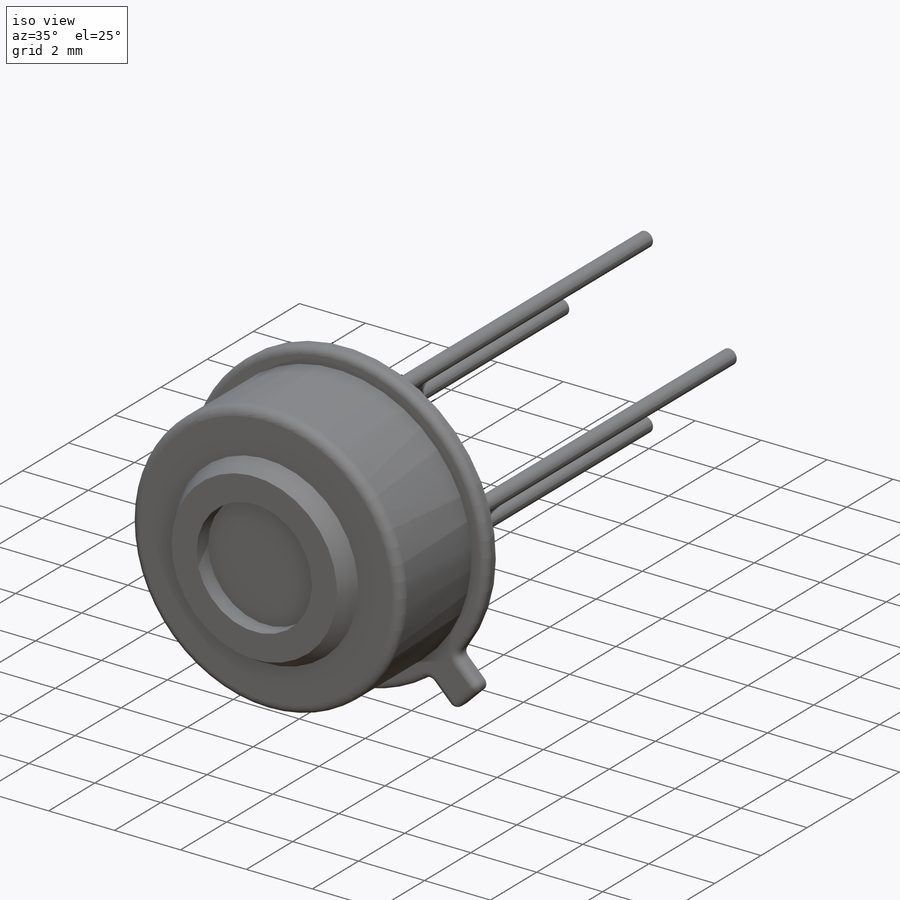
[diagram: iso view]
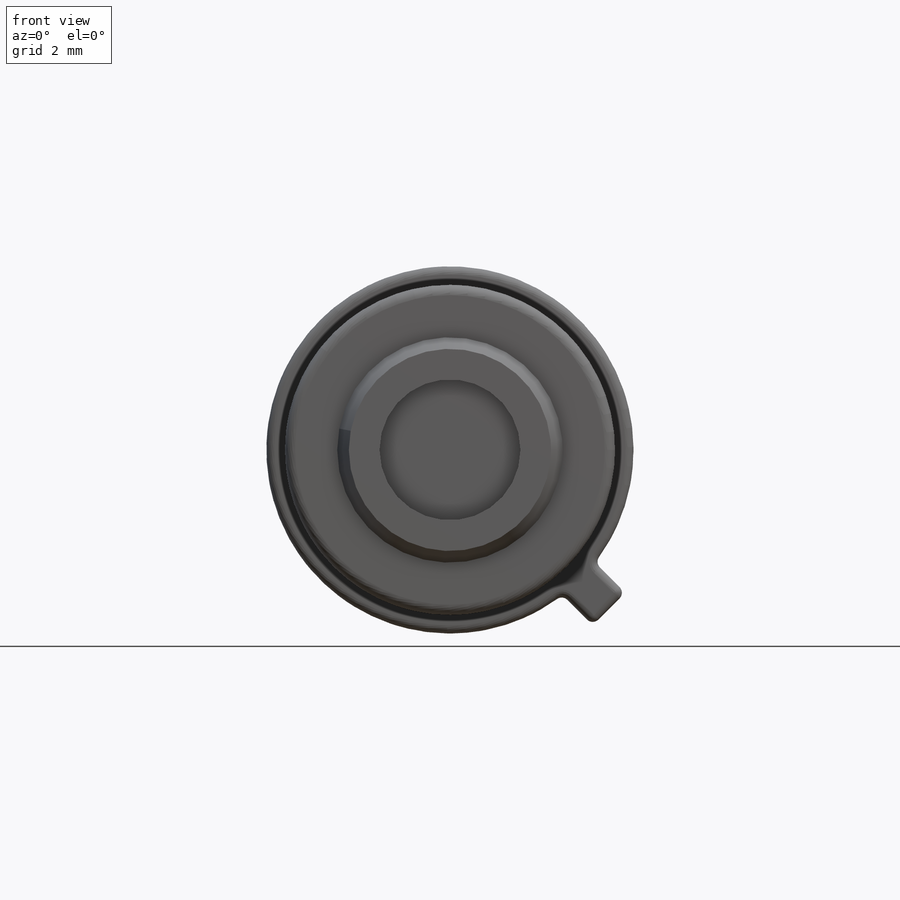
[diagram: front view]
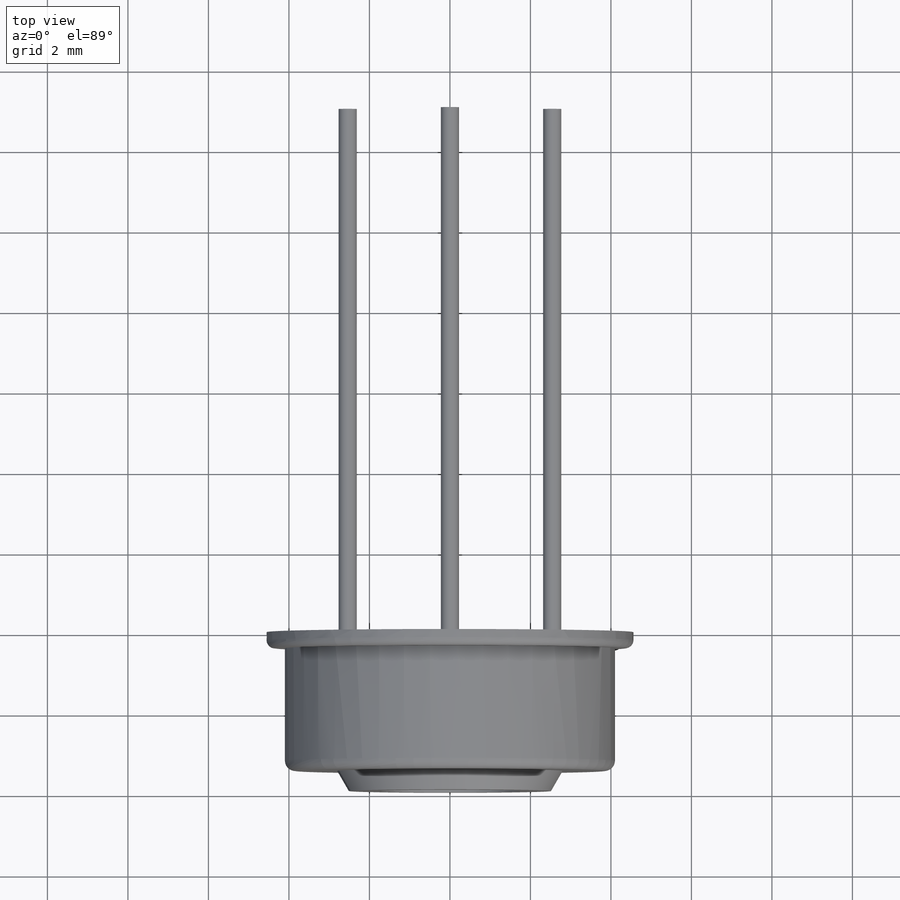
[diagram: top view]
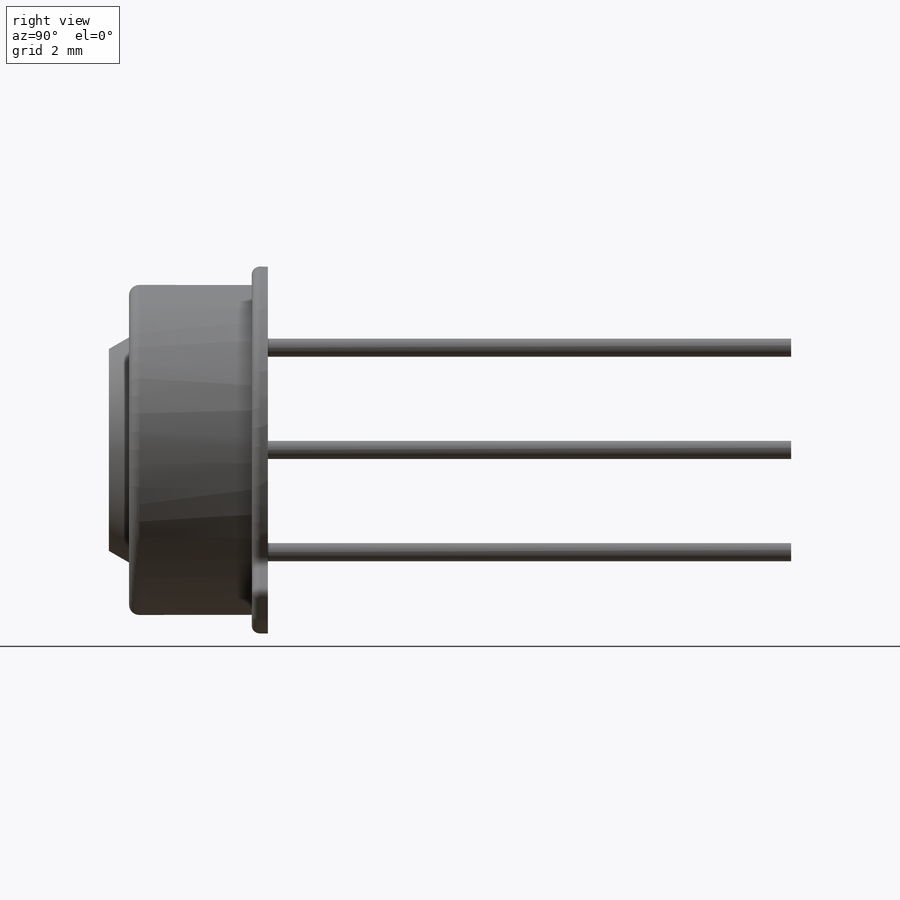
[diagram: right view]
SOLIDWORKS PART (.sldprt)
format: sldprt  version: not decoded by parser v0  size: 291,328 bytes
history: native  units: mm
features: sketch x4, extrude x4, fillet x2, material x1, pattern_circular x1, chamfer x1 (+13 scaffold rows collapsed)
feature tree (26):
  scaffold x13  (default folders/planes/origin — collapsed)
  material  "Material <not specified>"
  sketch  "Sketch1"  dims[c1.D1=9.12mm c1.D2=4.56mm c2.D2=45.0deg c2.D3=5.588mm c2.D4=1.143mm]
  extrude  "Boss-Extrude1"  Depth=0.4mm
  sketch  "Sketch3"  dims[D1=8.2mm]
  extrude  "Boss-Extrude3"  Depth=3.048mm
  sketch  "Sketch4"  dims[D1=5.6mm D2=3.5mm]
  extrude  "Boss-Extrude4"  Depth=0.499999mm
  sketch  "Sketch2"  dims[D1=5.08mm D2=0.45mm]
  extrude  "Boss-Extrude2"  Depth=13mm
  pattern_circular  "CirPattern1"  Count=4 Angle=360deg
  fillet  "Fillet1"  Radius=0.2mm
  fillet  "Fillet2"  Radius=0.254mm
  chamfer  "Chamfer1"  Distance=0.499999mm Angle=30deg
decode coverage: 12 of 12 modeling features carry decoded parameters
note: suppression state not decoded; provenance and decode notes live in map.json
